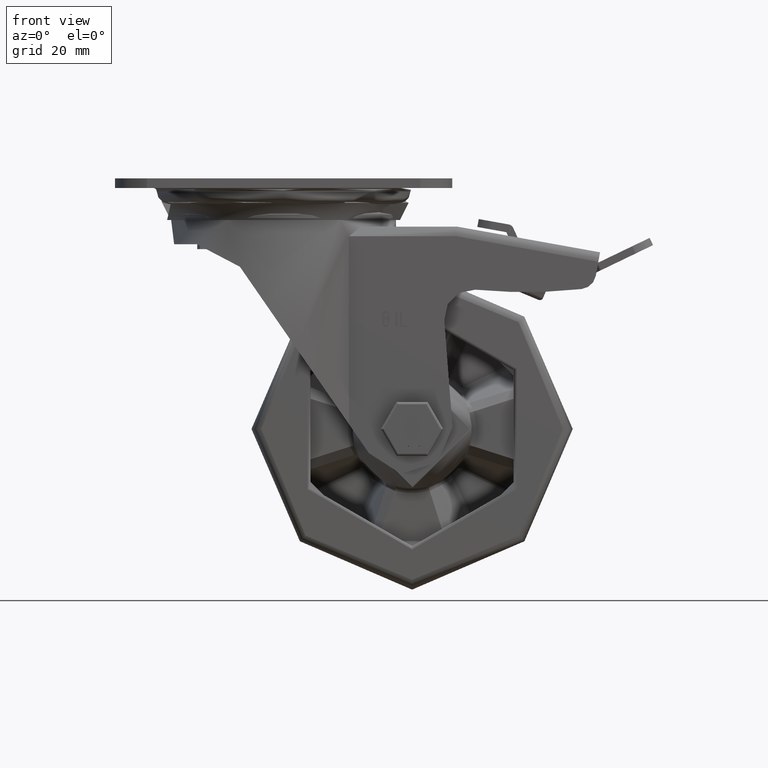
[diagram: clean part render]
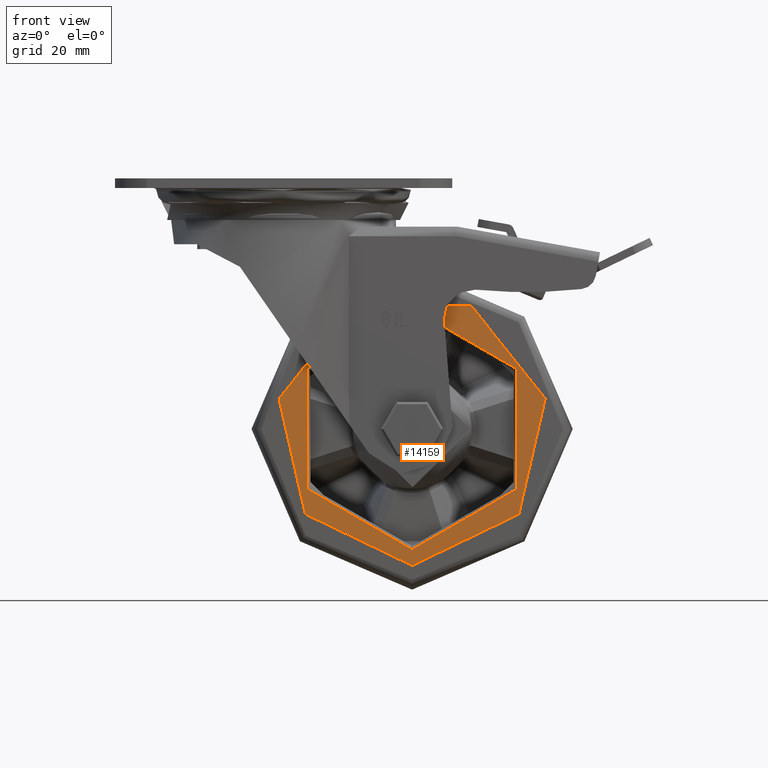
[diagram: same view with one face highlighted and labeled with its STEP entity id]
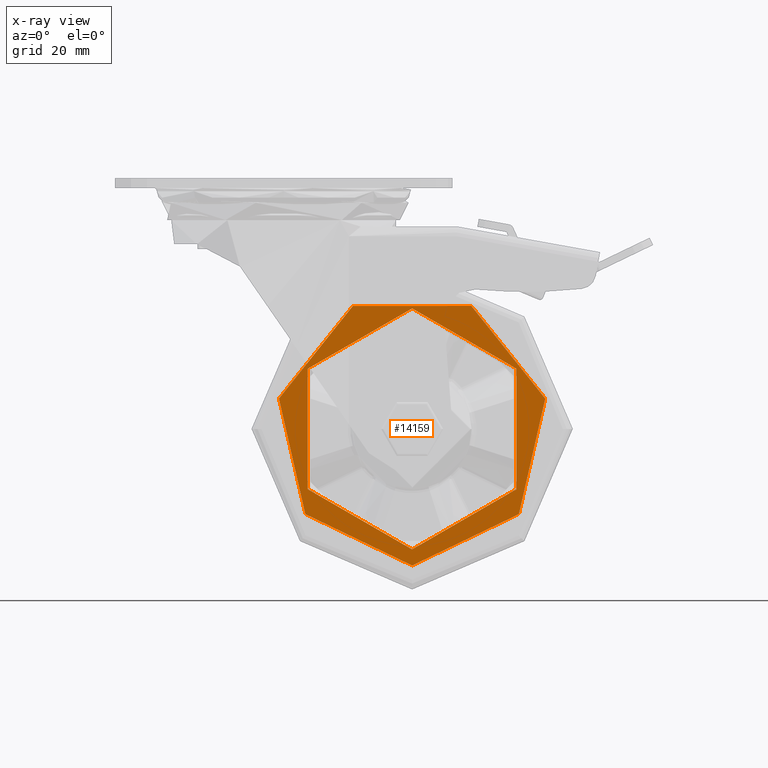
[diagram: x-ray of the same camera — body ghosted, the highlighted face saturated]
A machine part, front view. The second image highlights one B-rep face of the part: STEP entity #14159.
The next image is the same camera in x-ray: the body ghosted, the highlighted face saturated — about 0% of this face is hidden behind the body in this view.
In plain terms, the highlighted planar face has unit normal (-0, -1, -0).
Its self-contained STEP definition (entity closure, byte-faithful):
#971=FACE_BOUND('',#4951,.T.);
#1251=PLANE('',#15676);
#4067=FACE_OUTER_BOUND('',#4950,.T.);
#4950=EDGE_LOOP('',(#12109));
#4951=EDGE_LOOP('',(#12110));
#5531=CIRCLE('',#15354,42.5);
#5532=CIRCLE('',#15356,37.5);
#6557=VERTEX_POINT('',#25010);
#6558=VERTEX_POINT('',#25014);
#8193=EDGE_CURVE('',#6557,#6557,#5531,.T.);
#8194=EDGE_CURVE('',#6558,#6558,#5532,.T.);
#12109=ORIENTED_EDGE('',*,*,#8193,.F.);
#12110=ORIENTED_EDGE('',*,*,#8194,.F.);
#14159=ADVANCED_FACE('',(#4067,#971),#1251,.T.);
#15354=AXIS2_PLACEMENT_3D('',#25012,#18133,#18134);
#15356=AXIS2_PLACEMENT_3D('',#25015,#18137,#18138);
#15676=AXIS2_PLACEMENT_3D('',#51623,#18797,#18798);
#18133=DIRECTION('center_axis',(0.,1.,0.));
#18134=DIRECTION('ref_axis',(0.,0.,1.));
#18137=DIRECTION('center_axis',(0.,-1.,-6.93889390390722E-16));
#18138=DIRECTION('ref_axis',(0.,-6.93889390390722E-16,1.));
#18797=DIRECTION('center_axis',(0.,-1.,-6.93889390390722E-16));
#18798=DIRECTION('ref_axis',(0.,6.93889390390722E-16,-1.));
#25010=CARTESIAN_POINT('',(5.20474889637625E-15,-20.,-42.5));
#25012=CARTESIAN_POINT('Origin',(0.,-20.,0.));
#25014=CARTESIAN_POINT('',(4.59242549680257E-15,-19.9999999999999,-37.5));
#25015=CARTESIAN_POINT('Origin',(0.,-20.,-6.93889390390704E-16));
#51623=CARTESIAN_POINT('Origin',(0.,-20.,40.));